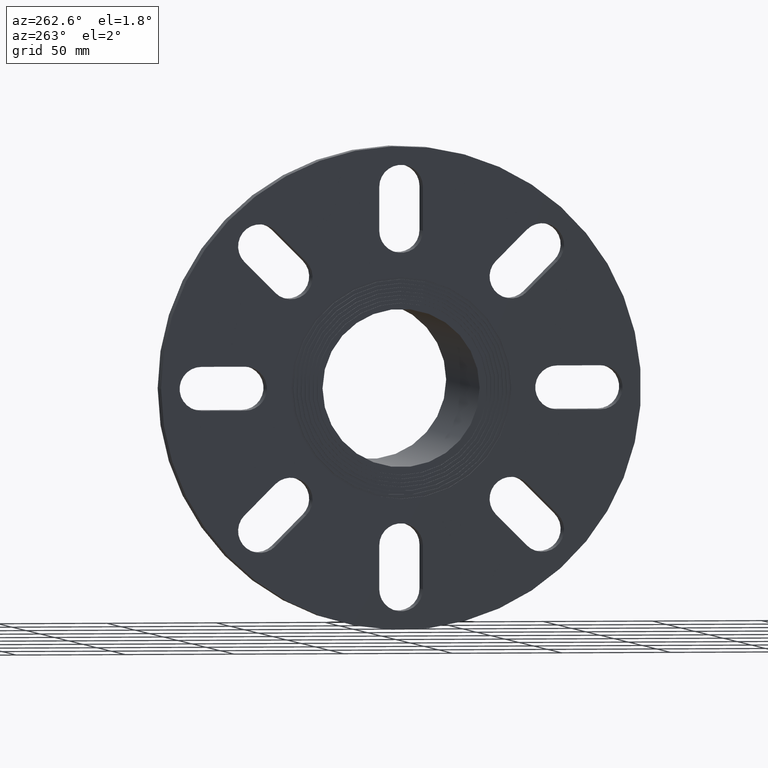
[diagram: clean part render]
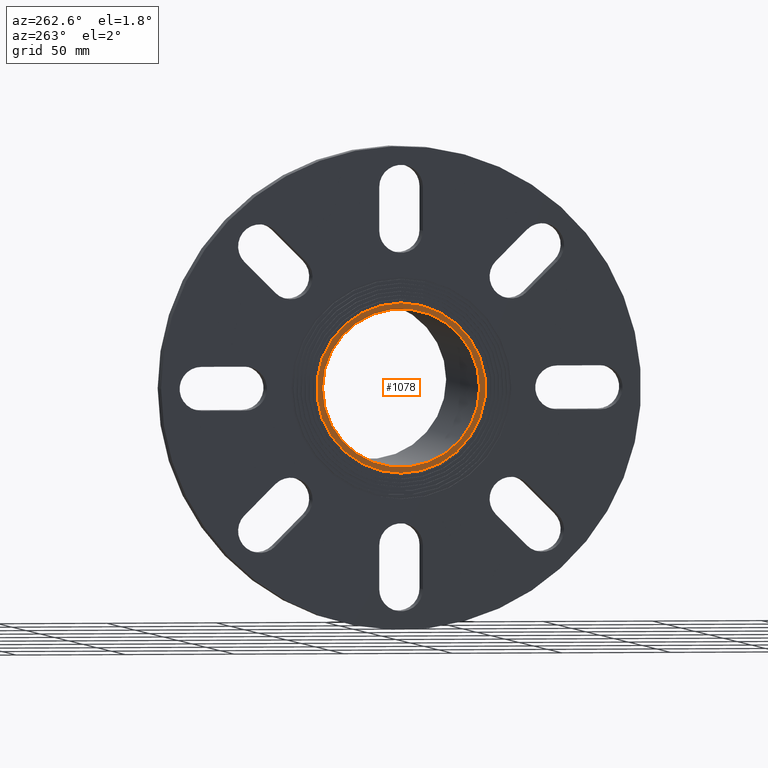
[diagram: same view with one face highlighted and labeled with its STEP entity id]
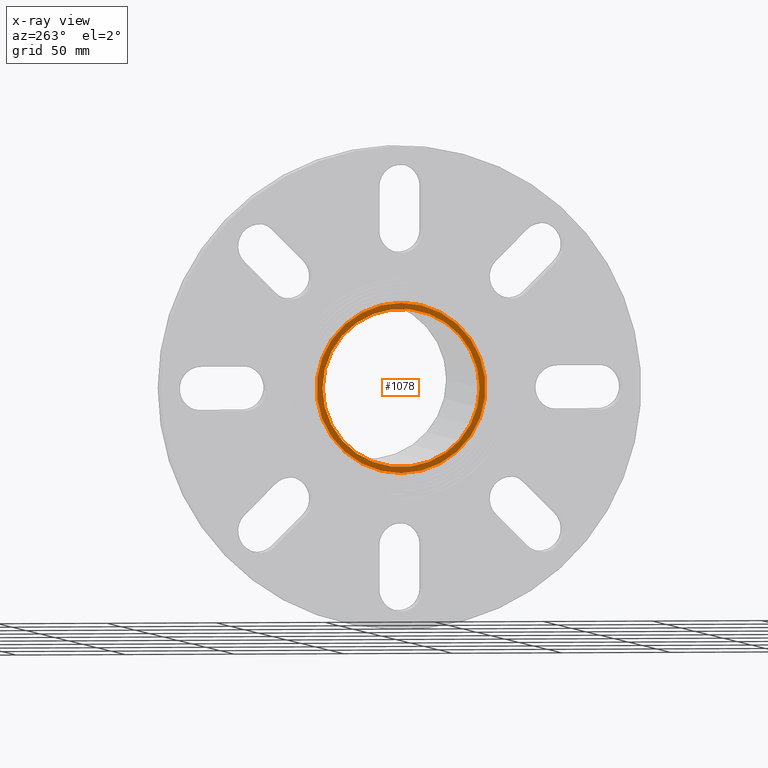
[diagram: x-ray of the same camera — body ghosted, the highlighted face saturated]
A machine part, auxiliary view. The second image highlights one B-rep face of the part: STEP entity #1078.
The next image is the same camera in x-ray: the body ghosted, the highlighted face saturated — about 0% of this face is hidden behind the body in this view.
In plain terms, the highlighted planar face has unit normal (-1, -0, 0).
Its self-contained STEP definition (entity closure, byte-faithful):
#174=PLANE('',#1213);
#248=FACE_BOUND('',#432,.T.);
#324=FACE_OUTER_BOUND('',#431,.T.);
#431=EDGE_LOOP('',(#971));
#432=EDGE_LOOP('',(#972));
#454=CIRCLE('',#1094,38.7);
#514=CIRCLE('',#1214,36.);
#522=VERTEX_POINT('',#1574);
#614=VERTEX_POINT('',#1850);
#622=EDGE_CURVE('',#522,#522,#454,.T.);
#746=EDGE_CURVE('',#614,#614,#514,.T.);
#971=ORIENTED_EDGE('',*,*,#622,.T.);
#972=ORIENTED_EDGE('',*,*,#746,.T.);
#1078=ADVANCED_FACE('',(#324,#248),#174,.T.);
#1094=AXIS2_PLACEMENT_3D('',#1575,#1241,#1242);
#1213=AXIS2_PLACEMENT_3D('',#1849,#1543,#1544);
#1214=AXIS2_PLACEMENT_3D('',#1851,#1545,#1546);
#1241=DIRECTION('center_axis',(-1.,-1.22464679914735E-16,0.));
#1242=DIRECTION('ref_axis',(0.,0.,-1.));
#1543=DIRECTION('center_axis',(-1.,-1.22464679914735E-16,0.));
#1544=DIRECTION('ref_axis',(0.,0.,1.));
#1545=DIRECTION('center_axis',(1.,1.22464679914735E-16,0.));
#1546=DIRECTION('ref_axis',(0.,0.,-1.));
#1574=CARTESIAN_POINT('',(-118.,-9.71144911723851E-15,38.7));
#1575=CARTESIAN_POINT('Origin',(-118.,-1.44508322299388E-14,0.));
#1849=CARTESIAN_POINT('Origin',(-118.,110.,0.));
#1850=CARTESIAN_POINT('',(-118.,36.,0.));
#1851=CARTESIAN_POINT('Origin',(-118.,-1.44508322299388E-14,0.));